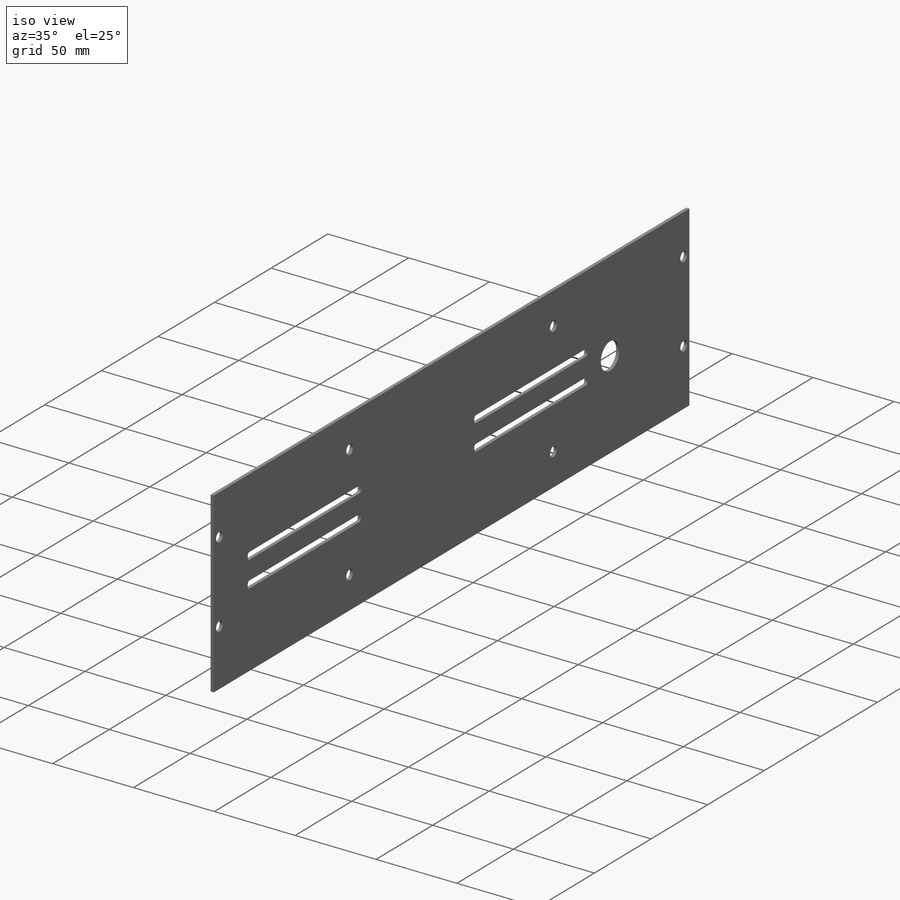
[diagram: iso view]
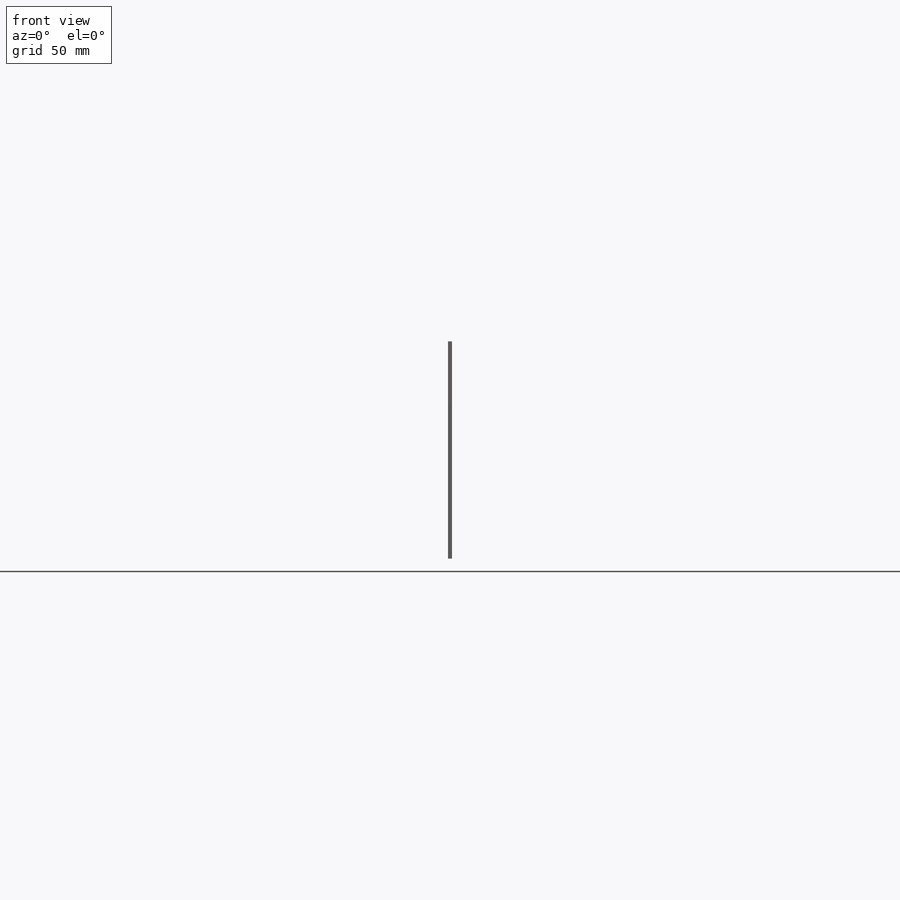
[diagram: front view]
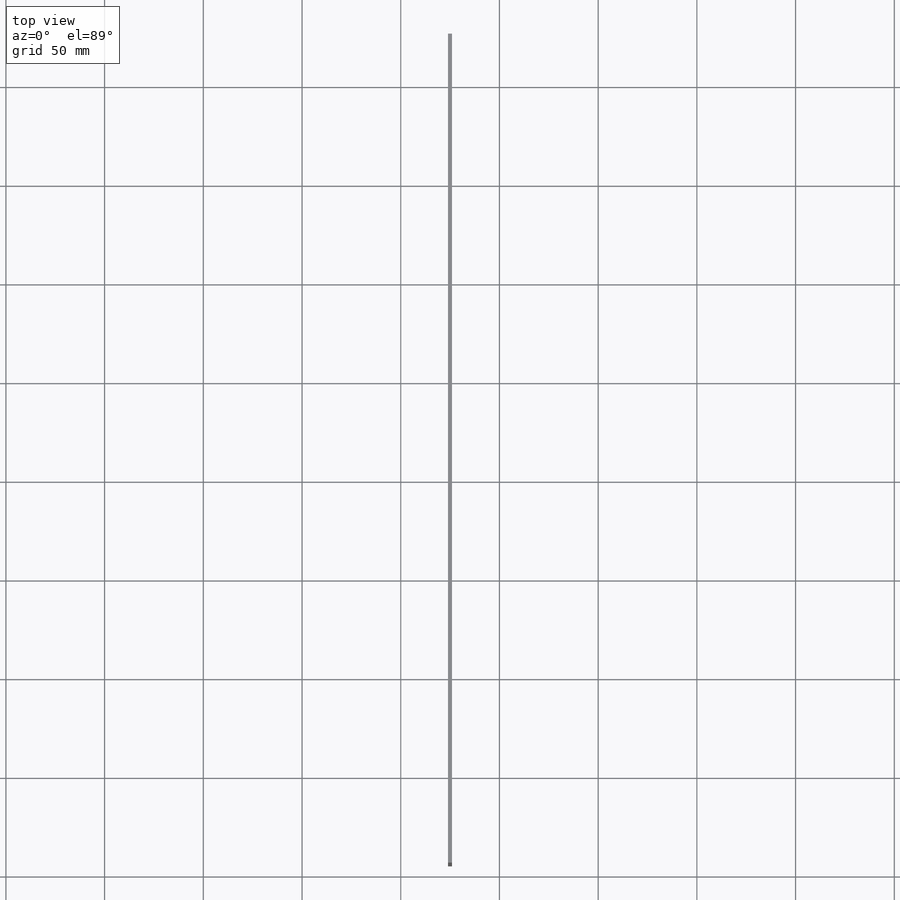
[diagram: top view]
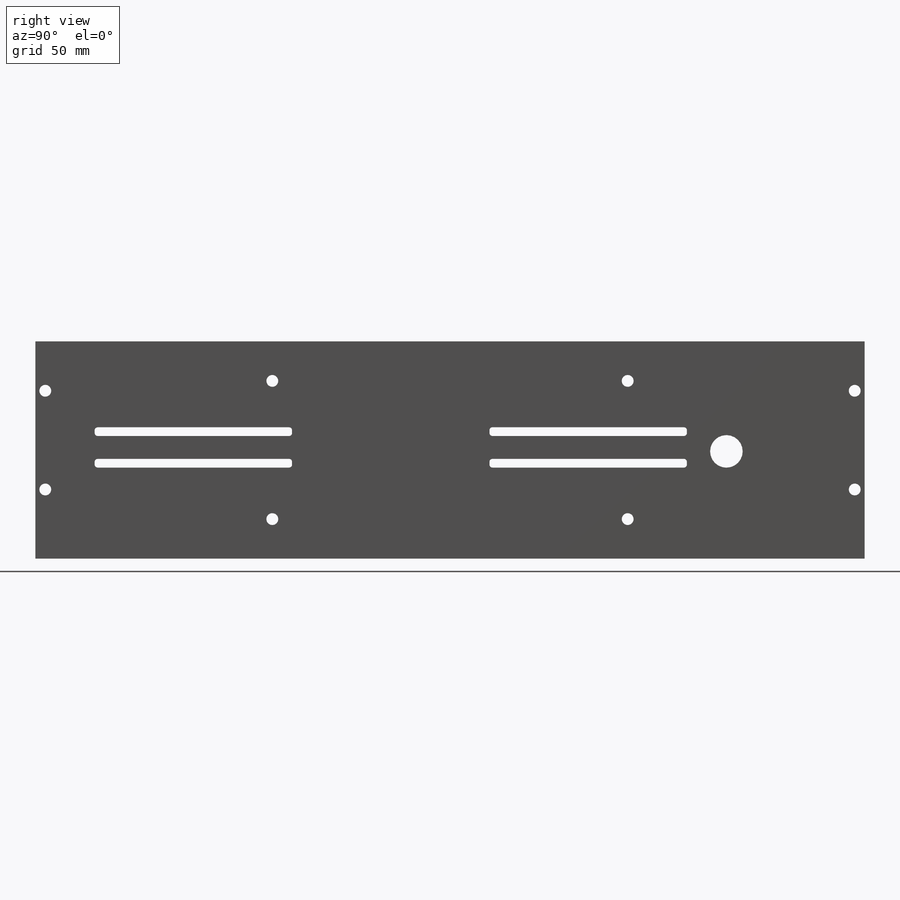
[diagram: right view]
SOLIDWORKS PART (.sldprt)
format: sldprt  version: not decoded by parser v0  size: 231,936 bytes
history: native  units: mm
features: sketch x4, cut_extrude x3, material x1, extrude x1, fillet x1 (+11 scaffold rows collapsed)
feature tree (21):
  scaffold x11  (default folders/planes/origin — collapsed)
  material  "Material <not specified>"
  sketch  "Sketch1"  dims[D1=20.0mm]
  extrude  "Boss-Extrude1"  Depth=2mm
  sketch  "Sketch2"  dims[D1=100.0mm D2=100.0mm D3=100.0mm D4=100.0mm D5=4.4mm D6=4.4mm D7=4.4mm D8=4.4mm D9=11.6mm D10=11.6mm D11=43.5mm D12=43.5mm D13=30.0mm D14=30.0mm D15=100.0mm D16=100.0mm]
  cut_extrude  "Cut-Extrude1"  Depth=2mm
  fillet  "Fillet1"  Radius=1.5mm
  sketch  "Sketch3"  dims[D1=6.0mm]
  cut_extrude  "Cut-Extrude2"  [1 undecoded]
  sketch  "Sketch4"  dims[D1=6.0mm D2=6.0mm D7=16.5mm D10=6.0mm D11=6.0mm D3=20.0mm D4=120.0mm D5=120.0mm D6=20.0mm D8=70.0mm D9=54.3mm D12=20.0mm D13=20.0mm D14=120.0mm D15=120.0mm]
  cut_extrude  "Cut-Extrude3"  [1 undecoded]
decode coverage: 7 of 9 modeling features carry decoded parameters
note: 2 parameter values undecoded
note: suppression state not decoded; provenance and decode notes live in map.json
